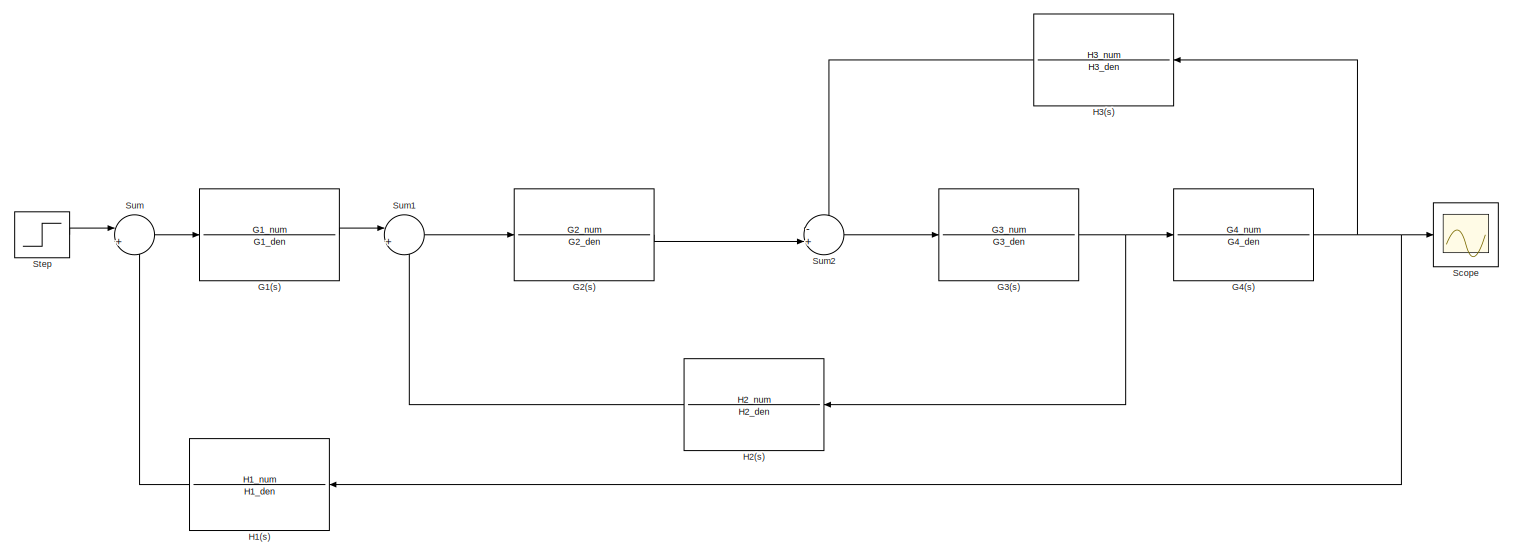
[diagram: root canvas - part 1/5, full width, top band]
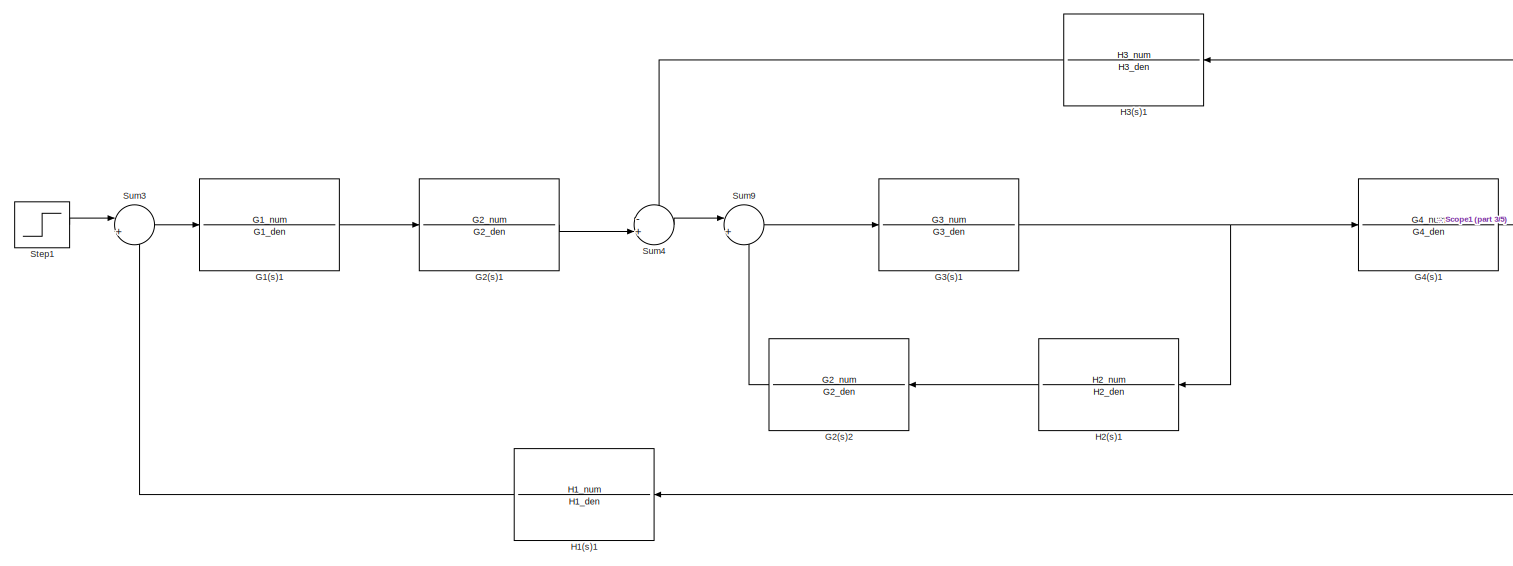
[diagram: root canvas - part 2/5, full width, top band]
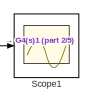
[diagram: root canvas - part 3/5, top right region]
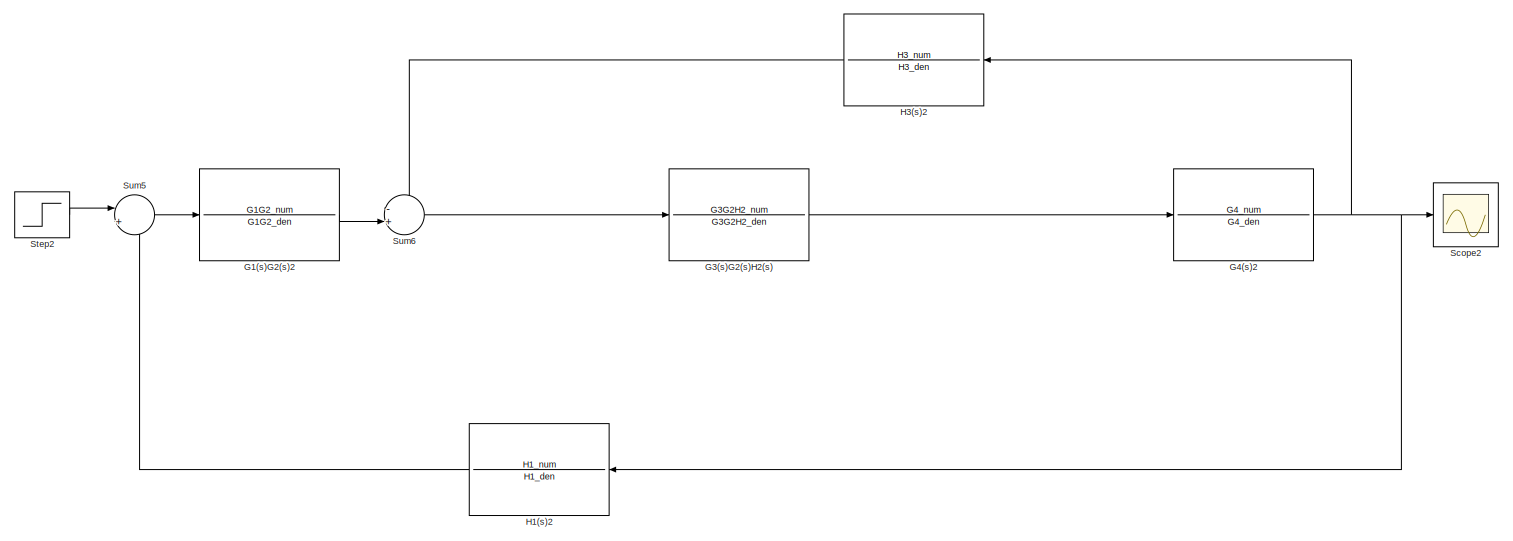
[diagram: root canvas - part 4/5, full width, middle band]
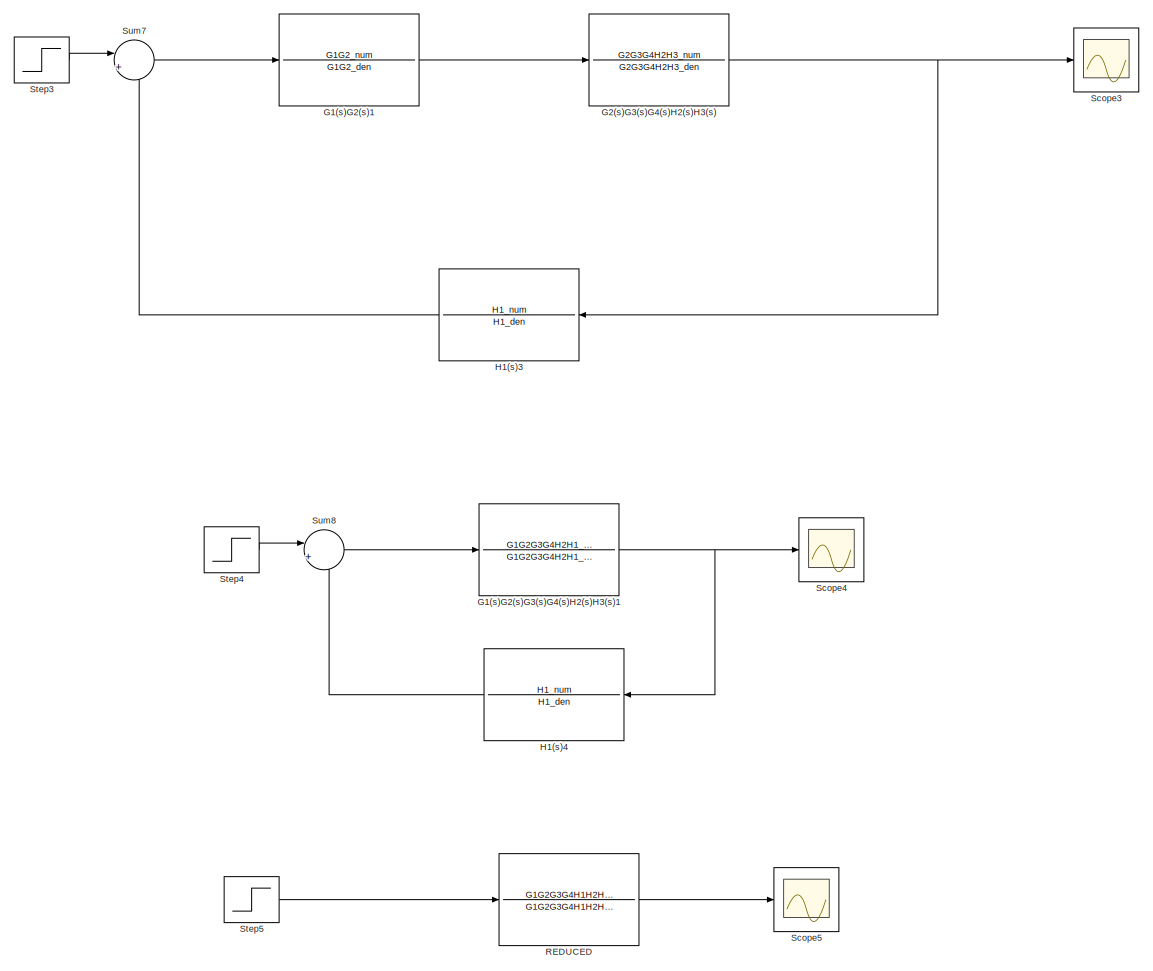
[diagram: root canvas - part 5/5, bottom center region]
MODEL slx_09ed552f4139
KIND model
CONFIG AbsTol = auto
CONFIG EnableMultiTasking = off
CONFIG FixedStep = auto
CONFIG MaxStep = auto
CONFIG MinStep = auto
CONFIG RelTol = 1e-3
CONFIG SampleTimeConstraint = Unconstrained
CONFIG SolverName = VariableStepAuto
CONFIG StartTime = 0.0
CONFIG StopTime = 20
BLOCK [TransferFcn] G1(s)
  Denominator = G1_den
  Numerator = G1_num
BLOCK [TransferFcn] G1(s)1
  Denominator = G1_den
  Numerator = G1_num
BLOCK [TransferFcn] G1(s)G2(s)1
  Denominator = G1G2_den
  Numerator = G1G2_num
BLOCK [TransferFcn] G1(s)G2(s)2
  Denominator = G1G2_den
  Numerator = G1G2_num
BLOCK [TransferFcn] G1(s)G2(s)G3(s)G4(s)H2(s)H3(s)1
  Denominator = G1G2G3G4H2H1_den
  Numerator = G1G2G3G4H2H1_num
BLOCK [TransferFcn] G2(s)
  Denominator = G2_den
  Numerator = G2_num
BLOCK [TransferFcn] G2(s)1
  Denominator = G2_den
  Numerator = G2_num
BLOCK [TransferFcn] G2(s)2
  Denominator = G2_den
  Numerator = G2_num
BLOCK [TransferFcn] G2(s)G3(s)G4(s)H2(s)H3(s)
  Denominator = G2G3G4H2H3_den
  Numerator = G2G3G4H2H3_num
BLOCK [TransferFcn] G3(s)
  Denominator = G3_den
  Numerator = G3_num
BLOCK [TransferFcn] G3(s)1
  Denominator = G3_den
  Numerator = G3_num
BLOCK [TransferFcn] G3(s)G2(s)H2(s)
  Denominator = G3G2H2_den
  Numerator = G3G2H2_num
BLOCK [TransferFcn] G4(s)
  Denominator = G4_den
  Numerator = G4_num
BLOCK [TransferFcn] G4(s)1
  Denominator = G4_den
  Numerator = G4_num
BLOCK [TransferFcn] G4(s)2
  Denominator = G4_den
  Numerator = G4_num
BLOCK [TransferFcn] H1(s)
  Denominator = H1_den
  Numerator = H1_num
BLOCK [TransferFcn] H1(s)1
  Denominator = H1_den
  Numerator = H1_num
BLOCK [TransferFcn] H1(s)2
  Denominator = H1_den
  Numerator = H1_num
BLOCK [TransferFcn] H1(s)3
  Denominator = H1_den
  Numerator = H1_num
BLOCK [TransferFcn] H1(s)4
  Denominator = H1_den
  Numerator = H1_num
BLOCK [TransferFcn] H2(s)
  Denominator = H2_den
  Numerator = H2_num
BLOCK [TransferFcn] H2(s)1
  Denominator = H2_den
  Numerator = H2_num
BLOCK [TransferFcn] H3(s)
  Denominator = H3_den
  Numerator = H3_num
BLOCK [TransferFcn] H3(s)1
  Denominator = H3_den
  Numerator = H3_num
BLOCK [TransferFcn] H3(s)2
  Denominator = H3_den
  Numerator = H3_num
BLOCK [TransferFcn] REDUCED
  Denominator = G1G2G3G4H1H2H3_den
  Numerator = G1G2G3G4H1H2H3_num
BLOCK [Scope] Scope
  Floating = off
  NumInputPorts = 1
  ScopeSpecificationString = Simulink.scopes.TimeScopeBlockCfg('CurrentConfiguration', extmgr.ConfigurationSet(extmgr.Configuration('Core','General UI',true),extmgr.Configuration('Core','Source UI',true),extmgr.Configuration('Sources','WiredSimulink',true),extmgr.Configuration('Visuals','Time Domain',true,'SerializedDisplays',{struct('MinYLimReal','-3004099702682.54443','MaxYLimReal','333788855854.61499','YLabelReal','','MinY...<+1539ch>
BLOCK [Scope] Scope1
  Floating = off
  NumInputPorts = 1
  ScopeSpecificationString = Simulink.scopes.TimeScopeBlockCfg('CurrentConfiguration', extmgr.ConfigurationSet(extmgr.Configuration('Core','General UI',true),extmgr.Configuration('Core','Source UI',true),extmgr.Configuration('Sources','WiredSimulink',true,'DataLoggingVariableName','ScopeData1'),extmgr.Configuration('Visuals','Time Domain',true,'SerializedDisplays',{struct('MinYLimReal','-3004099702682.54004','MaxYLimReal','33...<+1575ch>
BLOCK [Scope] Scope2
  Floating = off
  NumInputPorts = 1
  ScopeSpecificationString = Simulink.scopes.TimeScopeBlockCfg('CurrentConfiguration', extmgr.ConfigurationSet(extmgr.Configuration('Core','General UI',true),extmgr.Configuration('Core','Source UI',true),extmgr.Configuration('Sources','WiredSimulink',true,'DataLoggingVariableName','ScopeData2'),extmgr.Configuration('Visuals','Time Domain',true,'SerializedDisplays',{struct('MinYLimReal','-3004099702682.54785','MaxYLimReal','33...<+1577ch>
BLOCK [Scope] Scope3
  Floating = off
  NumInputPorts = 1
  ScopeSpecificationString = Simulink.scopes.TimeScopeBlockCfg('CurrentConfiguration', extmgr.ConfigurationSet(extmgr.Configuration('Core','General UI',true),extmgr.Configuration('Core','Source UI',true),extmgr.Configuration('Sources','WiredSimulink',true,'DataLoggingVariableName','ScopeData3'),extmgr.Configuration('Visuals','Time Domain',true,'SerializedDisplays',{struct('MinYLimReal','-3004099702682.54834','MaxYLimReal','33...<+1594ch>
BLOCK [Scope] Scope4
  Floating = off
  NumInputPorts = 1
  ScopeSpecificationString = Simulink.scopes.TimeScopeBlockCfg('CurrentConfiguration', extmgr.ConfigurationSet(extmgr.Configuration('Core','General UI',true),extmgr.Configuration('Core','Source UI',true),extmgr.Configuration('Sources','WiredSimulink',true,'DataLoggingVariableName','ScopeData4'),extmgr.Configuration('Visuals','Time Domain',true,'SerializedDisplays',{struct('MinYLimReal','-3004099702682.50879','MaxYLimReal','33...<+1602ch>
BLOCK [Scope] Scope5
  Floating = off
  NumInputPorts = 1
  ScopeSpecificationString = Simulink.scopes.TimeScopeBlockCfg('CurrentConfiguration', extmgr.ConfigurationSet(extmgr.Configuration('Core','General UI',true),extmgr.Configuration('Core','Source UI',true),extmgr.Configuration('Sources','WiredSimulink',true,'DataLoggingVariableName','ScopeData5'),extmgr.Configuration('Visuals','Time Domain',true,'SerializedDisplays',{struct('MinYLimReal','-1594434385933.73486','MaxYLimReal','17...<+1578ch>
BLOCK [Step] Step
  SampleTime = 0
BLOCK [Step] Step1
  SampleTime = 0
BLOCK [Step] Step2
  SampleTime = 0
BLOCK [Step] Step3
  SampleTime = 0
BLOCK [Step] Step4
  SampleTime = 0
BLOCK [Step] Step5
  SampleTime = 0
BLOCK [Sum] Sum
  Inputs = |+-
BLOCK [Sum] Sum1
  Inputs = |+-
BLOCK [Sum] Sum2
  Inputs = -+|
BLOCK [Sum] Sum3
  Inputs = |+-
BLOCK [Sum] Sum4
  Inputs = -+|
BLOCK [Sum] Sum5
  Inputs = |+-
BLOCK [Sum] Sum6
  Inputs = -+|
BLOCK [Sum] Sum7
  Inputs = |+-
BLOCK [Sum] Sum8
  Inputs = |+-
BLOCK [Sum] Sum9
  Inputs = |+-
LINE G1(s)1:1 -> G2(s)1:1
LINE G1(s):1 -> Sum1:1
LINE G1(s)G2(s)1:1 -> G2(s)G3(s)G4(s)H2(s)H3(s):1
LINE G1(s)G2(s)2:1 -> Sum6:2
NET G1(s)G2(s)G3(s)G4(s)H2(s)H3(s)1:1 -> H1(s)4:1, Scope4:1
LINE G2(s)1:1 -> Sum4:2
LINE G2(s)2:1 -> Sum9:2
LINE G2(s):1 -> Sum2:2
NET G2(s)G3(s)G4(s)H2(s)H3(s):1 -> H1(s)3:1, Scope3:1
NET G3(s)1:1 -> G4(s)1:1, H2(s)1:1
NET G3(s):1 -> G4(s):1, H2(s):1
LINE G3(s)G2(s)H2(s):1 -> G4(s)2:1
NET G4(s)1:1 -> H1(s)1:1, H3(s)1:1, Scope1:1
NET G4(s)2:1 -> H1(s)2:1, H3(s)2:1, Scope2:1
NET G4(s):1 -> H1(s):1, H3(s):1, Scope:1
LINE H1(s)1:1 -> Sum3:2
LINE H1(s)2:1 -> Sum5:2
LINE H1(s)3:1 -> Sum7:2
LINE H1(s)4:1 -> Sum8:2
LINE H1(s):1 -> Sum:2
LINE H2(s)1:1 -> G2(s)2:1
LINE H2(s):1 -> Sum1:2
LINE H3(s)1:1 -> Sum4:1
LINE H3(s)2:1 -> Sum6:1
LINE H3(s):1 -> Sum2:1
LINE REDUCED:1 -> Scope5:1
LINE Step1:1 -> Sum3:1
LINE Step2:1 -> Sum5:1
LINE Step3:1 -> Sum7:1
LINE Step4:1 -> Sum8:1
LINE Step5:1 -> REDUCED:1
LINE Step:1 -> Sum:1
LINE Sum1:1 -> G2(s):1
LINE Sum2:1 -> G3(s):1
LINE Sum3:1 -> G1(s)1:1
LINE Sum4:1 -> Sum9:1
LINE Sum5:1 -> G1(s)G2(s)2:1
LINE Sum6:1 -> G3(s)G2(s)H2(s):1
LINE Sum7:1 -> G1(s)G2(s)1:1
LINE Sum8:1 -> G1(s)G2(s)G3(s)G4(s)H2(s)H3(s)1:1
LINE Sum9:1 -> G3(s)1:1
LINE Sum:1 -> G1(s):1
note: NET lines group one-source signal fan-out (src -> all destinations, sorted); 1:1 wires keep LINE
